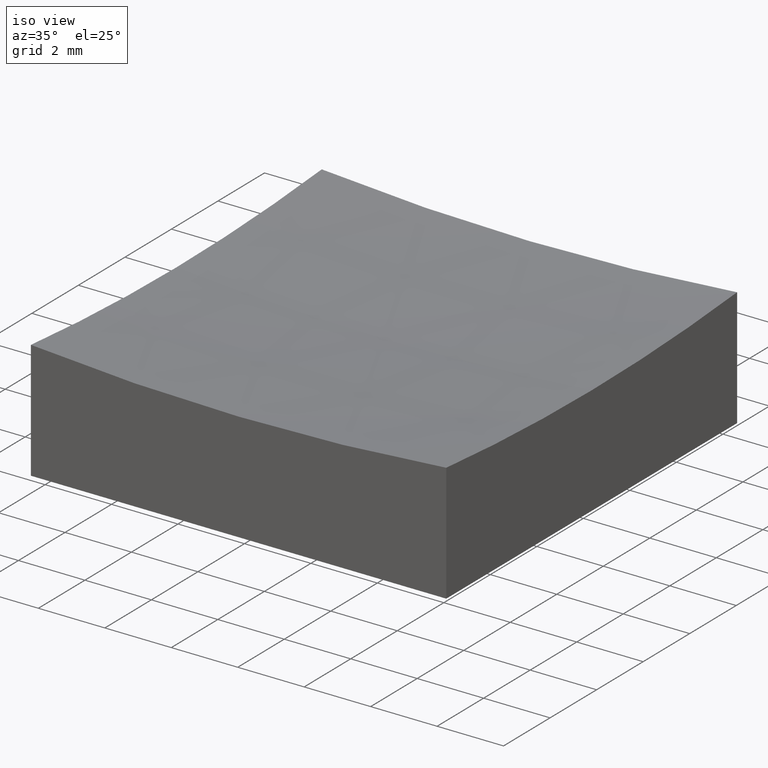
[diagram: clean part render]
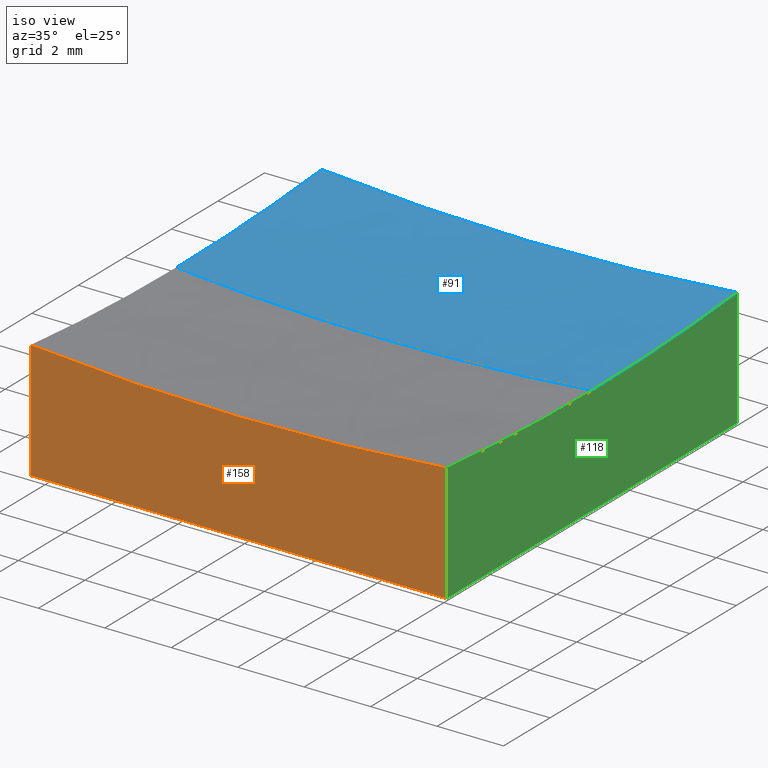
[diagram: same view with three faces highlighted in distinct colors, each labeled with its STEP entity id]
A machine part, iso view with three faces highlighted in distinct colors.
Their STEP definitions:

[orange] entity #158 — the highlighted planar face has unit normal (0, 1, 0).
#1 = EDGE_CURVE ( 'NONE', #153, #204, #198, .T. ) ;
#8 = EDGE_LOOP ( 'NONE', ( #173, #211, #244, #109 ) ) ;
#24 = FACE_OUTER_BOUND ( 'NONE', #8, .T. ) ;
#27 = CARTESIAN_POINT ( 'NONE',  ( -6.250000000000000000, -6.250000000000000888, 0.0000000000000000000 ) ) ;
#36 = CARTESIAN_POINT ( 'NONE',  ( -6.250000000000000000, -6.250000000000000888, 10.00000000000000000 ) ) ;
#40 = EDGE_CURVE ( 'NONE', #187, #222, #219, .T. ) ;
#43 = CARTESIAN_POINT ( 'NONE',  ( 8.939921633775681592E-15, -6.250000000000000888, 73.00000000000001421 ) ) ;
#44 = CARTESIAN_POINT ( 'NONE',  ( 6.250000000000000000, -6.250000000000000888, 10.00000000000000000 ) ) ;
#47 = CARTESIAN_POINT ( 'NONE',  ( 6.250000000000000000, -6.250000000000000888, 3.560277938344263760 ) ) ;
#54 = VECTOR ( 'NONE', #229, 1000.000000000000000 ) ;
#63 = CARTESIAN_POINT ( 'NONE',  ( -6.250000000000000000, -6.250000000000000888, 0.0000000000000000000 ) ) ;
#64 = DIRECTION ( 'NONE',  ( 1.000000000000000000, 0.0000000000000000000, 0.0000000000000000000 ) ) ;
#80 = AXIS2_PLACEMENT_3D ( 'NONE', #43, #83, #233 ) ;
#82 = CARTESIAN_POINT ( 'NONE',  ( 6.250000000000000000, -6.250000000000000888, 0.0000000000000000000 ) ) ;
#83 = DIRECTION ( 'NONE',  ( 0.0000000000000000000, 1.000000000000000000, 0.0000000000000000000 ) ) ;
#109 = ORIENTED_EDGE ( 'NONE', *, *, #1, .T. ) ;
#123 = LINE ( 'NONE', #44, #225 ) ;
#126 = LINE ( 'NONE', #36, #54 ) ;
#129 = DIRECTION ( 'NONE',  ( 0.0000000000000000000, -0.0000000000000000000, 1.000000000000000000 ) ) ;
#145 = CARTESIAN_POINT ( 'NONE',  ( -6.250000000000000000, -6.250000000000000888, 3.560277938344263760 ) ) ;
#149 = PLANE ( 'NONE',  #249 ) ;
#153 = VERTEX_POINT ( 'NONE', #63 ) ;
#158 = ADVANCED_FACE ( 'NONE', ( #24 ), #149, .F. ) ;
#171 = VECTOR ( 'NONE', #64, 1000.000000000000000 ) ;
#173 = ORIENTED_EDGE ( 'NONE', *, *, #227, .F. ) ;
#187 = VERTEX_POINT ( 'NONE', #47 ) ;
#194 = DIRECTION ( 'NONE',  ( -0.0000000000000000000, -0.0000000000000000000, -1.000000000000000000 ) ) ;
#197 = CARTESIAN_POINT ( 'NONE',  ( -6.250000000000000000, -6.250000000000000888, 10.00000000000000000 ) ) ;
#198 = LINE ( 'NONE', #27, #171 ) ;
#204 = VERTEX_POINT ( 'NONE', #82 ) ;
#211 = ORIENTED_EDGE ( 'NONE', *, *, #40, .T. ) ;
#214 = DIRECTION ( 'NONE',  ( 0.0000000000000000000, 1.000000000000000000, 0.0000000000000000000 ) ) ;
#219 = CIRCLE ( 'NONE', #80, 69.72042383692169665 ) ;
#222 = VERTEX_POINT ( 'NONE', #145 ) ;
#225 = VECTOR ( 'NONE', #194, 1000.000000000000000 ) ;
#226 = EDGE_CURVE ( 'NONE', #222, #153, #126, .T. ) ;
#227 = EDGE_CURVE ( 'NONE', #187, #204, #123, .T. ) ;
#229 = DIRECTION ( 'NONE',  ( -0.0000000000000000000, -0.0000000000000000000, -1.000000000000000000 ) ) ;
#233 = DIRECTION ( 'NONE',  ( 0.0000000000000000000, 0.0000000000000000000, 1.000000000000000000 ) ) ;
#244 = ORIENTED_EDGE ( 'NONE', *, *, #226, .T. ) ;
#249 = AXIS2_PLACEMENT_3D ( 'NONE', #197, #214, #129 ) ;

[blue] entity #91 — the highlighted spherical surface has radius 70 mm.
#3 = DIRECTION ( 'NONE',  ( 0.0000000000000000000, 0.0000000000000000000, -1.000000000000000000 ) ) ;
#4 = DIRECTION ( 'NONE',  ( -1.000000000000000000, 1.224646799147353207E-16, 0.0000000000000000000 ) ) ;
#11 = FACE_OUTER_BOUND ( 'NONE', #50, .T. ) ;
#15 = EDGE_CURVE ( 'NONE', #135, #52, #242, .T. ) ;
#26 = DIRECTION ( 'NONE',  ( 1.224646799147353207E-16, 1.000000000000000000, 3.905599837641398835E-33 ) ) ;
#28 = CARTESIAN_POINT ( 'NONE',  ( 8.939921633775681592E-15, 0.0000000000000000000, 73.00000000000001421 ) ) ;
#50 = EDGE_LOOP ( 'NONE', ( #90, #215, #130, #217, #224 ) ) ;
#52 = VERTEX_POINT ( 'NONE', #177 ) ;
#53 = CARTESIAN_POINT ( 'NONE',  ( 6.250000000000000000, 6.250000000000000888, 3.560277938344263760 ) ) ;
#61 = CARTESIAN_POINT ( 'NONE',  ( -6.250000000000000000, 6.250000000000000888, 3.560277938344263760 ) ) ;
#65 = AXIS2_PLACEMENT_3D ( 'NONE', #85, #26, #4 ) ;
#67 = VERTEX_POINT ( 'NONE', #120 ) ;
#72 = CARTESIAN_POINT ( 'NONE',  ( 1.545860043261271274E-14, 0.0000000000000000000, 3.000000000000002665 ) ) ;
#74 = AXIS2_PLACEMENT_3D ( 'NONE', #154, #132, #94 ) ;
#76 = EDGE_CURVE ( 'NONE', #52, #93, #230, .T. ) ;
#81 = DIRECTION ( 'NONE',  ( 0.0000000000000000000, 0.0000000000000000000, -1.000000000000000000 ) ) ;
#85 = CARTESIAN_POINT ( 'NONE',  ( 8.939921633775681592E-15, 0.0000000000000000000, 73.00000000000001421 ) ) ;
#88 = CIRCLE ( 'NONE', #101, 69.72042383692169665 ) ;
#90 = ORIENTED_EDGE ( 'NONE', *, *, #143, .F. ) ;
#91 = ADVANCED_FACE ( 'NONE', ( #11 ), #201, .F. ) ;
#93 = VERTEX_POINT ( 'NONE', #53 ) ;
#94 = DIRECTION ( 'NONE',  ( 0.0000000000000000000, 0.0000000000000000000, 1.000000000000000000 ) ) ;
#99 = DIRECTION ( 'NONE',  ( 1.000000000000000000, 0.0000000000000000000, -0.0000000000000000000 ) ) ;
#101 = AXIS2_PLACEMENT_3D ( 'NONE', #161, #213, #3 ) ;
#108 = EDGE_CURVE ( 'NONE', #93, #202, #166, .T. ) ;
#120 = CARTESIAN_POINT ( 'NONE',  ( -6.250000000000000000, 7.654042494670971412E-16, 3.279576163078306905 ) ) ;
#130 = ORIENTED_EDGE ( 'NONE', *, *, #76, .T. ) ;
#131 = AXIS2_PLACEMENT_3D ( 'NONE', #160, #99, #203 ) ;
#132 = DIRECTION ( 'NONE',  ( 0.0000000000000000000, 1.000000000000000000, 0.0000000000000000000 ) ) ;
#135 = VERTEX_POINT ( 'NONE', #72 ) ;
#139 = AXIS2_PLACEMENT_3D ( 'NONE', #181, #251, #81 ) ;
#143 = EDGE_CURVE ( 'NONE', #135, #67, #150, .T. ) ;
#150 = CIRCLE ( 'NONE', #65, 70.00000000000000000 ) ;
#154 = CARTESIAN_POINT ( 'NONE',  ( 8.939921633775681592E-15, 6.250000000000000888, 73.00000000000001421 ) ) ;
#160 = CARTESIAN_POINT ( 'NONE',  ( 6.250000000000000000, 0.0000000000000000000, 73.00000000000001421 ) ) ;
#161 = CARTESIAN_POINT ( 'NONE',  ( -6.250000000000000000, 0.0000000000000000000, 73.00000000000001421 ) ) ;
#166 = CIRCLE ( 'NONE', #74, 69.72042383692169665 ) ;
#176 = AXIS2_PLACEMENT_3D ( 'NONE', #28, #243, #188 ) ;
#177 = CARTESIAN_POINT ( 'NONE',  ( 6.250000000000000000, 0.0000000000000000000, 3.279576163078306905 ) ) ;
#181 = CARTESIAN_POINT ( 'NONE',  ( 8.939921633775681592E-15, 0.0000000000000000000, 73.00000000000001421 ) ) ;
#188 = DIRECTION ( 'NONE',  ( 1.000000000000000000, 0.0000000000000000000, 0.0000000000000000000 ) ) ;
#201 = SPHERICAL_SURFACE ( 'NONE', #176, 70.00000000000000000 ) ;
#202 = VERTEX_POINT ( 'NONE', #61 ) ;
#203 = DIRECTION ( 'NONE',  ( 0.0000000000000000000, 0.0000000000000000000, -1.000000000000000000 ) ) ;
#207 = EDGE_CURVE ( 'NONE', #67, #202, #88, .T. ) ;
#213 = DIRECTION ( 'NONE',  ( 1.000000000000000000, 0.0000000000000000000, -0.0000000000000000000 ) ) ;
#215 = ORIENTED_EDGE ( 'NONE', *, *, #15, .T. ) ;
#217 = ORIENTED_EDGE ( 'NONE', *, *, #108, .T. ) ;
#224 = ORIENTED_EDGE ( 'NONE', *, *, #207, .F. ) ;
#230 = CIRCLE ( 'NONE', #131, 69.72042383692169665 ) ;
#242 = CIRCLE ( 'NONE', #139, 70.00000000000000000 ) ;
#243 = DIRECTION ( 'NONE',  ( -0.0000000000000000000, 1.000000000000000000, 0.0000000000000000000 ) ) ;
#251 = DIRECTION ( 'NONE',  ( 0.0000000000000000000, -1.000000000000000000, 0.0000000000000000000 ) ) ;

[green] entity #118 — the highlighted planar face has unit normal (1, 0, -0).
#13 = CARTESIAN_POINT ( 'NONE',  ( 6.250000000000000000, 6.250000000000000888, 0.0000000000000000000 ) ) ;
#16 = CIRCLE ( 'NONE', #48, 69.72042383692169665 ) ;
#17 = LINE ( 'NONE', #56, #162 ) ;
#25 = ORIENTED_EDGE ( 'NONE', *, *, #227, .T. ) ;
#32 = DIRECTION ( 'NONE',  ( 0.0000000000000000000, 0.0000000000000000000, -1.000000000000000000 ) ) ;
#33 = AXIS2_PLACEMENT_3D ( 'NONE', #221, #245, #134 ) ;
#44 = CARTESIAN_POINT ( 'NONE',  ( 6.250000000000000000, -6.250000000000000888, 10.00000000000000000 ) ) ;
#46 = ORIENTED_EDGE ( 'NONE', *, *, #68, .F. ) ;
#47 = CARTESIAN_POINT ( 'NONE',  ( 6.250000000000000000, -6.250000000000000888, 3.560277938344263760 ) ) ;
#48 = AXIS2_PLACEMENT_3D ( 'NONE', #92, #223, #32 ) ;
#49 = CARTESIAN_POINT ( 'NONE',  ( 6.250000000000000000, 6.250000000000000888, 0.0000000000000000000 ) ) ;
#51 = PLANE ( 'NONE',  #33 ) ;
#52 = VERTEX_POINT ( 'NONE', #177 ) ;
#53 = CARTESIAN_POINT ( 'NONE',  ( 6.250000000000000000, 6.250000000000000888, 3.560277938344263760 ) ) ;
#56 = CARTESIAN_POINT ( 'NONE',  ( 6.250000000000000000, 6.250000000000000888, 10.00000000000000000 ) ) ;
#68 = EDGE_CURVE ( 'NONE', #93, #106, #17, .T. ) ;
#70 = FACE_OUTER_BOUND ( 'NONE', #183, .T. ) ;
#76 = EDGE_CURVE ( 'NONE', #52, #93, #230, .T. ) ;
#82 = CARTESIAN_POINT ( 'NONE',  ( 6.250000000000000000, -6.250000000000000888, 0.0000000000000000000 ) ) ;
#92 = CARTESIAN_POINT ( 'NONE',  ( 6.250000000000000000, 0.0000000000000000000, 73.00000000000001421 ) ) ;
#93 = VERTEX_POINT ( 'NONE', #53 ) ;
#97 = EDGE_CURVE ( 'NONE', #187, #52, #16, .T. ) ;
#98 = EDGE_CURVE ( 'NONE', #106, #204, #156, .T. ) ;
#99 = DIRECTION ( 'NONE',  ( 1.000000000000000000, 0.0000000000000000000, -0.0000000000000000000 ) ) ;
#106 = VERTEX_POINT ( 'NONE', #13 ) ;
#113 = DIRECTION ( 'NONE',  ( 0.0000000000000000000, -1.000000000000000000, 0.0000000000000000000 ) ) ;
#118 = ADVANCED_FACE ( 'NONE', ( #70 ), #51, .T. ) ;
#123 = LINE ( 'NONE', #44, #225 ) ;
#131 = AXIS2_PLACEMENT_3D ( 'NONE', #160, #99, #203 ) ;
#134 = DIRECTION ( 'NONE',  ( -0.0000000000000000000, 0.0000000000000000000, -1.000000000000000000 ) ) ;
#155 = ORIENTED_EDGE ( 'NONE', *, *, #97, .F. ) ;
#156 = LINE ( 'NONE', #49, #178 ) ;
#160 = CARTESIAN_POINT ( 'NONE',  ( 6.250000000000000000, 0.0000000000000000000, 73.00000000000001421 ) ) ;
#162 = VECTOR ( 'NONE', #208, 1000.000000000000000 ) ;
#177 = CARTESIAN_POINT ( 'NONE',  ( 6.250000000000000000, 0.0000000000000000000, 3.279576163078306905 ) ) ;
#178 = VECTOR ( 'NONE', #113, 1000.000000000000000 ) ;
#183 = EDGE_LOOP ( 'NONE', ( #155, #25, #220, #46, #240 ) ) ;
#187 = VERTEX_POINT ( 'NONE', #47 ) ;
#194 = DIRECTION ( 'NONE',  ( -0.0000000000000000000, -0.0000000000000000000, -1.000000000000000000 ) ) ;
#203 = DIRECTION ( 'NONE',  ( 0.0000000000000000000, 0.0000000000000000000, -1.000000000000000000 ) ) ;
#204 = VERTEX_POINT ( 'NONE', #82 ) ;
#208 = DIRECTION ( 'NONE',  ( -0.0000000000000000000, -0.0000000000000000000, -1.000000000000000000 ) ) ;
#220 = ORIENTED_EDGE ( 'NONE', *, *, #98, .F. ) ;
#221 = CARTESIAN_POINT ( 'NONE',  ( 6.250000000000000000, 6.250000000000000888, 10.00000000000000000 ) ) ;
#223 = DIRECTION ( 'NONE',  ( 1.000000000000000000, 0.0000000000000000000, -0.0000000000000000000 ) ) ;
#225 = VECTOR ( 'NONE', #194, 1000.000000000000000 ) ;
#227 = EDGE_CURVE ( 'NONE', #187, #204, #123, .T. ) ;
#230 = CIRCLE ( 'NONE', #131, 69.72042383692169665 ) ;
#240 = ORIENTED_EDGE ( 'NONE', *, *, #76, .F. ) ;
#245 = DIRECTION ( 'NONE',  ( 1.000000000000000000, 0.0000000000000000000, -0.0000000000000000000 ) ) ;